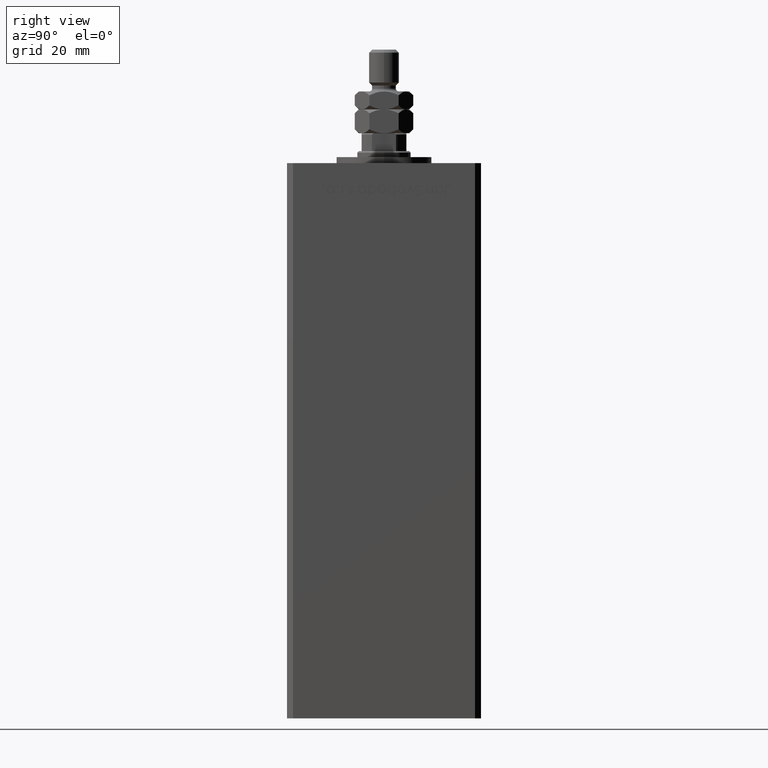
[diagram: clean part render]
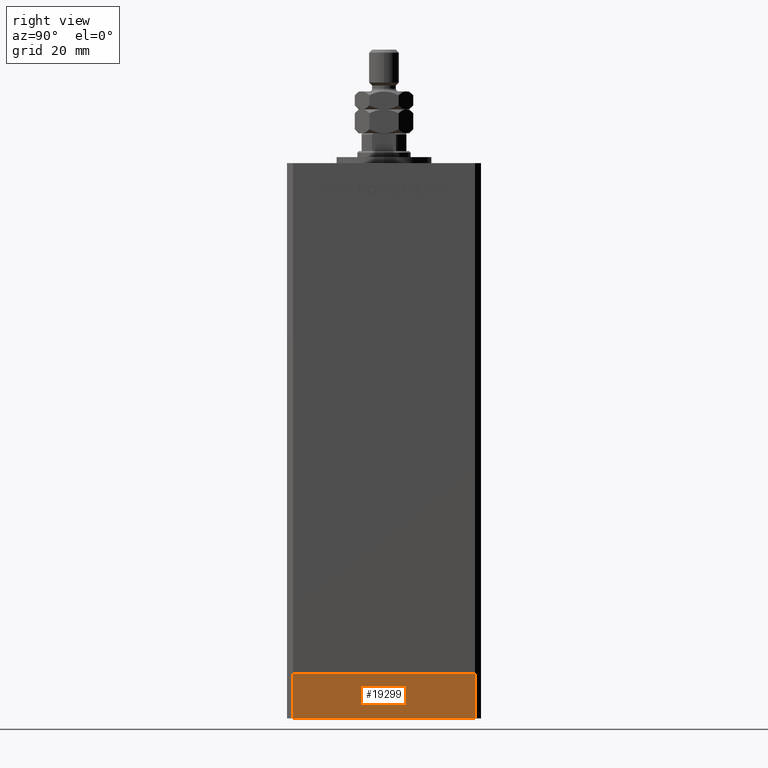
[diagram: same view with one face highlighted and labeled with its STEP entity id]
A machine part, right view. The second image highlights one B-rep face of the part: STEP entity #19299.
In plain terms, the highlighted planar face has unit normal (1, -0, 0).
Its self-contained STEP definition (entity closure, byte-faithful):
#1160 = PLANE ( 'NONE',  #30569 ) ;
#1708 = EDGE_LOOP ( 'NONE', ( #19941, #42074, #31150, #22273 ) ) ;
#5298 = DIRECTION ( 'NONE',  ( 4.550094363217855288E-16, -1.000000000000000000, 0.000000000000000000 ) ) ;
#5790 = DIRECTION ( 'NONE',  ( 4.550094363217855288E-16, -1.000000000000000000, 0.000000000000000000 ) ) ;
#6056 = CARTESIAN_POINT ( 'NONE',  ( -37.50000000000001421, 30.49999999999998579, -15.00000000000000000 ) ) ;
#6204 = CARTESIAN_POINT ( 'NONE',  ( -37.49999999999998579, -30.50000000000001421, -15.00000000000000000 ) ) ;
#10136 = FACE_OUTER_BOUND ( 'NONE', #1708, .T. ) ;
#11066 = CARTESIAN_POINT ( 'NONE',  ( -37.50000000000001421, 30.49999999999998579, 0.000000000000000000 ) ) ;
#11303 = EDGE_CURVE ( 'NONE', #25286, #51935, #40927, .T. ) ;
#12492 = DIRECTION ( 'NONE',  ( 0.000000000000000000, 0.000000000000000000, 1.000000000000000000 ) ) ;
#14513 = EDGE_CURVE ( 'NONE', #29361, #51935, #52930, .T. ) ;
#15027 = LINE ( 'NONE', #19102, #33085 ) ;
#16267 = EDGE_CURVE ( 'NONE', #18536, #25286, #15027, .T. ) ;
#18536 = VERTEX_POINT ( 'NONE', #22600 ) ;
#19046 = VECTOR ( 'NONE', #28723, 1000.000000000000000 ) ;
#19102 = CARTESIAN_POINT ( 'NONE',  ( -37.50000000000001421, 30.49999999999998579, -15.00000000000000000 ) ) ;
#19299 = ADVANCED_FACE ( 'NONE', ( #10136 ), #1160, .T. ) ;
#19941 = ORIENTED_EDGE ( 'NONE', *, *, #11303, .F. ) ;
#22273 = ORIENTED_EDGE ( 'NONE', *, *, #14513, .T. ) ;
#22600 = CARTESIAN_POINT ( 'NONE',  ( -37.50000000000001421, 30.49999999999998579, -15.00000000000000000 ) ) ;
#22636 = EDGE_CURVE ( 'NONE', #18536, #29361, #46309, .T. ) ;
#25286 = VERTEX_POINT ( 'NONE', #29401 ) ;
#26183 = DIRECTION ( 'NONE',  ( -1.000000000000000000, -4.550094363217855288E-16, 0.000000000000000000 ) ) ;
#28228 = CARTESIAN_POINT ( 'NONE',  ( -37.49999999999998579, -30.50000000000001421, -15.00000000000000000 ) ) ;
#28723 = DIRECTION ( 'NONE',  ( 4.550094363217855288E-16, -1.000000000000000000, 0.000000000000000000 ) ) ;
#29361 = VERTEX_POINT ( 'NONE', #6204 ) ;
#29401 = CARTESIAN_POINT ( 'NONE',  ( -37.50000000000001421, 30.49999999999998579, 0.000000000000000000 ) ) ;
#30569 = AXIS2_PLACEMENT_3D ( 'NONE', #6056, #26183, #5790 ) ;
#31150 = ORIENTED_EDGE ( 'NONE', *, *, #22636, .T. ) ;
#33085 = VECTOR ( 'NONE', #12492, 1000.000000000000000 ) ;
#38429 = CARTESIAN_POINT ( 'NONE',  ( -37.50000000000001421, 30.49999999999998579, -15.00000000000000000 ) ) ;
#39990 = CARTESIAN_POINT ( 'NONE',  ( -37.49999999999998579, -30.50000000000001421, 0.000000000000000000 ) ) ;
#40927 = LINE ( 'NONE', #11066, #19046 ) ;
#42074 = ORIENTED_EDGE ( 'NONE', *, *, #16267, .F. ) ;
#43963 = DIRECTION ( 'NONE',  ( 0.000000000000000000, 0.000000000000000000, 1.000000000000000000 ) ) ;
#46309 = LINE ( 'NONE', #38429, #47130 ) ;
#47130 = VECTOR ( 'NONE', #5298, 1000.000000000000000 ) ;
#48639 = VECTOR ( 'NONE', #43963, 1000.000000000000000 ) ;
#51935 = VERTEX_POINT ( 'NONE', #39990 ) ;
#52930 = LINE ( 'NONE', #28228, #48639 ) ;